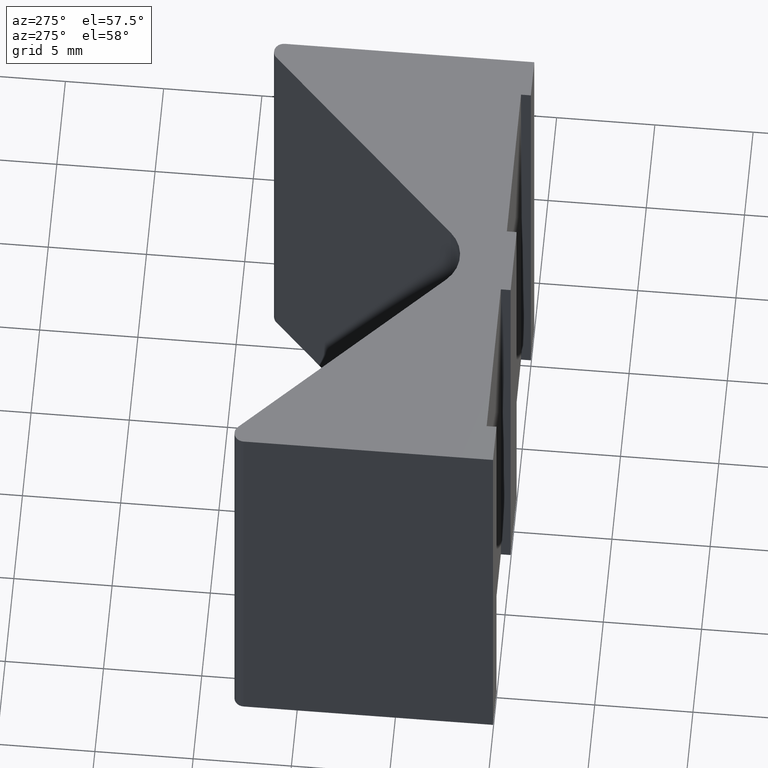
[diagram: clean part render]
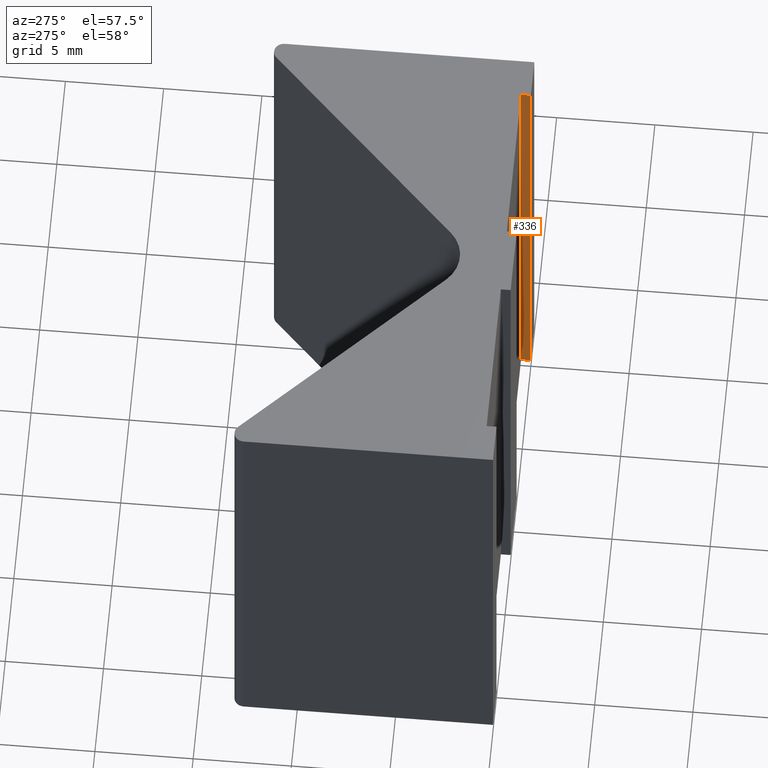
[diagram: same view with one face highlighted and labeled with its STEP entity id]
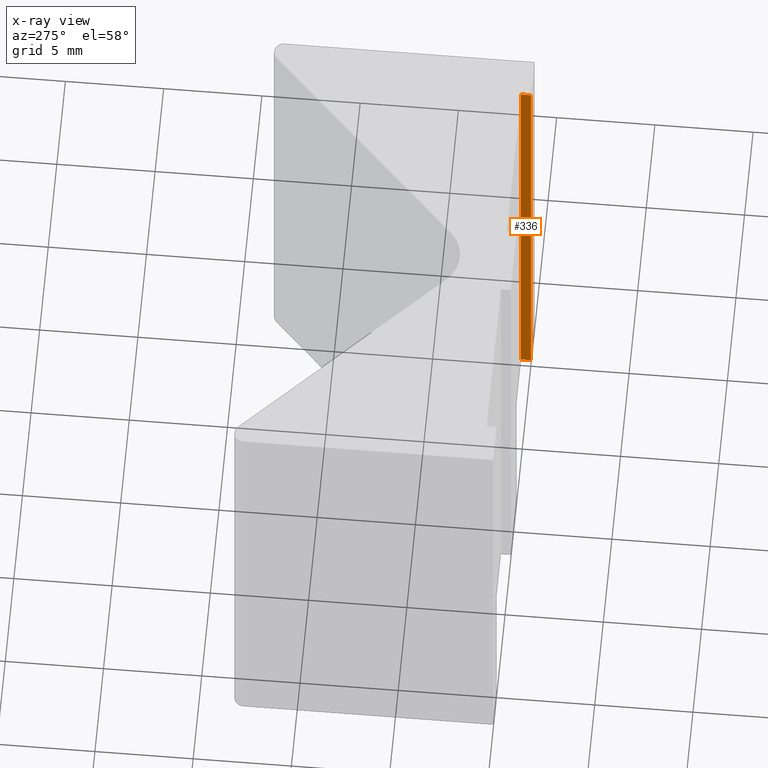
[diagram: x-ray of the same camera — body ghosted, the highlighted face saturated]
A machine part, auxiliary view. The second image highlights one B-rep face of the part: STEP entity #336.
The next image is the same camera in x-ray: the body ghosted, the highlighted face saturated — about 0% of this face is hidden behind the body in this view.
In plain terms, the highlighted planar face has unit normal (-1, 0, 0).
Its self-contained STEP definition (entity closure, byte-faithful):
#19=FACE_OUTER_BOUND('',#37,.T.);
#37=EDGE_LOOP('',(#240,#241,#242,#243));
#62=LINE('',#500,#104);
#73=LINE('',#529,#115);
#74=LINE('',#530,#116);
#75=LINE('',#531,#117);
#104=VECTOR('',#406,10.);
#115=VECTOR('',#425,10.);
#116=VECTOR('',#426,10.);
#117=VECTOR('',#427,10.);
#146=VERTEX_POINT('',#497);
#147=VERTEX_POINT('',#499);
#160=VERTEX_POINT('',#527);
#161=VERTEX_POINT('',#528);
#178=EDGE_CURVE('',#147,#146,#62,.T.);
#192=EDGE_CURVE('',#160,#161,#73,.T.);
#193=EDGE_CURVE('',#161,#147,#74,.T.);
#194=EDGE_CURVE('',#160,#146,#75,.T.);
#240=ORIENTED_EDGE('',*,*,#192,.T.);
#241=ORIENTED_EDGE('',*,*,#193,.T.);
#242=ORIENTED_EDGE('',*,*,#178,.T.);
#243=ORIENTED_EDGE('',*,*,#194,.F.);
#321=PLANE('',#380);
#336=ADVANCED_FACE('',(#19),#321,.T.);
#380=AXIS2_PLACEMENT_3D('',#526,#423,#424);
#406=DIRECTION('',(0.,-1.,0.));
#423=DIRECTION('center_axis',(-1.,0.,0.));
#424=DIRECTION('ref_axis',(0.,0.,1.));
#425=DIRECTION('',(0.,1.,0.));
#426=DIRECTION('',(0.,0.,-1.));
#427=DIRECTION('',(0.,0.,-1.));
#497=CARTESIAN_POINT('',(10.,5.70283267950883E-16,-12.5));
#499=CARTESIAN_POINT('',(10.,0.500000000000001,-12.5));
#500=CARTESIAN_POINT('',(10.,5.70283267950883E-16,-12.5));
#526=CARTESIAN_POINT('Origin',(10.,5.70283267950883E-16,0.));
#527=CARTESIAN_POINT('',(10.,5.70283267950883E-16,12.5));
#528=CARTESIAN_POINT('',(10.,0.500000000000001,12.5));
#529=CARTESIAN_POINT('',(10.,5.70283267950883E-16,12.5));
#530=CARTESIAN_POINT('',(10.,0.500000000000001,0.));
#531=CARTESIAN_POINT('',(10.,5.70283267950883E-16,0.));